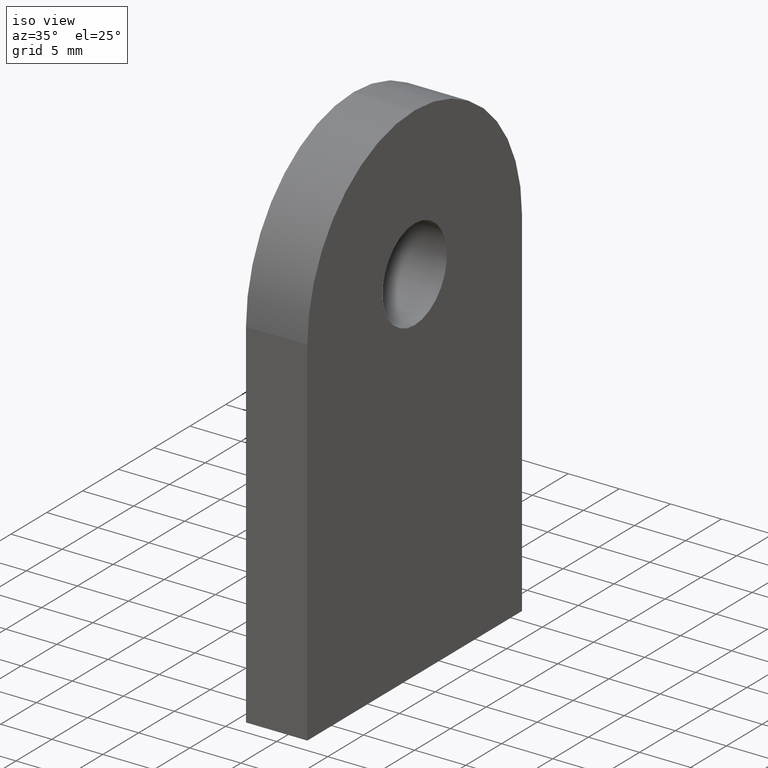
[diagram: clean part render]
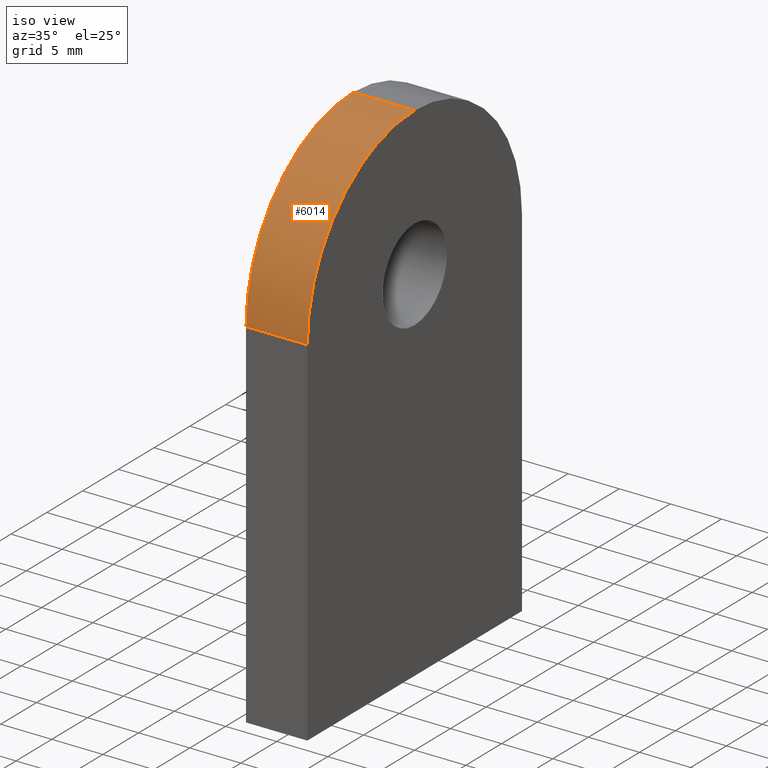
[diagram: same view with one face highlighted and labeled with its STEP entity id]
A machine part, iso view. The second image highlights one B-rep face of the part: STEP entity #6014.
In plain terms, the highlighted cylindrical surface (partial cylindrical patch) has radius 15 mm, axis along (-1, -0, -0).
Its self-contained STEP definition (entity closure, byte-faithful):
#72 = AXIS2_PLACEMENT_3D ( 'NONE', #8174, #9714, #1127 ) ;
#141 = CIRCLE ( 'NONE', #72, 15.00000000000000000 ) ;
#192 = DIRECTION ( 'NONE',  ( 0.0000000000000000000, 0.0000000000000000000, 1.000000000000000000 ) ) ;
#686 = CARTESIAN_POINT ( 'NONE',  ( -3.000000000000000000, 0.0000000000000000000, 34.99999999999999300 ) ) ;
#1127 = DIRECTION ( 'NONE',  ( 0.0000000000000000000, 0.0000000000000000000, 1.000000000000000000 ) ) ;
#1175 = DIRECTION ( 'NONE',  ( -1.000000000000000000, -0.0000000000000000000, -0.0000000000000000000 ) ) ;
#1973 = VECTOR ( 'NONE', #11272, 1000.000000000000000 ) ;
#2793 = CARTESIAN_POINT ( 'NONE',  ( -3.000000000000000000, -14.99999999999999800, 34.99999999999999300 ) ) ;
#3438 = VECTOR ( 'NONE', #4605, 1000.000000000000000 ) ;
#3561 = VERTEX_POINT ( 'NONE', #2793 ) ;
#3963 = VERTEX_POINT ( 'NONE', #5025 ) ;
#4091 = EDGE_CURVE ( 'NONE', #9499, #5758, #7897, .T. ) ;
#4244 = CARTESIAN_POINT ( 'NONE',  ( 3.000000000000000000, 0.0000000000000000000, 49.99999999999999300 ) ) ;
#4508 = CARTESIAN_POINT ( 'NONE',  ( -3.000000000000000000, 0.0000000000000000000, 49.99999999999999300 ) ) ;
#4565 = CARTESIAN_POINT ( 'NONE',  ( 3.000000000000000000, -14.99999999999999800, 34.99999999999999300 ) ) ;
#4605 = DIRECTION ( 'NONE',  ( -1.000000000000000000, -0.0000000000000000000, -0.0000000000000000000 ) ) ;
#5025 = CARTESIAN_POINT ( 'NONE',  ( 3.000000000000000000, -14.99999999999999800, 34.99999999999999300 ) ) ;
#5758 = VERTEX_POINT ( 'NONE', #4508 ) ;
#6014 = ADVANCED_FACE ( 'NONE', ( #7052 ), #8437, .T. ) ;
#6452 = CARTESIAN_POINT ( 'NONE',  ( 3.000000000000000000, 0.0000000000000000000, 34.99999999999999300 ) ) ;
#6757 = EDGE_CURVE ( 'NONE', #3963, #9499, #141, .T. ) ;
#7052 = FACE_OUTER_BOUND ( 'NONE', #7404, .T. ) ;
#7073 = ORIENTED_EDGE ( 'NONE', *, *, #10202, .F. ) ;
#7404 = EDGE_LOOP ( 'NONE', ( #9777, #7955, #9921, #7073 ) ) ;
#7897 = LINE ( 'NONE', #4244, #1973 ) ;
#7955 = ORIENTED_EDGE ( 'NONE', *, *, #4091, .T. ) ;
#8174 = CARTESIAN_POINT ( 'NONE',  ( 3.000000000000000000, 0.0000000000000000000, 34.99999999999999300 ) ) ;
#8437 = CYLINDRICAL_SURFACE ( 'NONE', #10440, 15.00000000000000000 ) ;
#8580 = DIRECTION ( 'NONE',  ( 0.0000000000000000000, 0.0000000000000000000, 1.000000000000000000 ) ) ;
#9064 = LINE ( 'NONE', #4565, #3438 ) ;
#9289 = DIRECTION ( 'NONE',  ( -1.000000000000000000, -0.0000000000000000000, 0.0000000000000000000 ) ) ;
#9499 = VERTEX_POINT ( 'NONE', #10049 ) ;
#9714 = DIRECTION ( 'NONE',  ( -1.000000000000000000, -0.0000000000000000000, 0.0000000000000000000 ) ) ;
#9740 = AXIS2_PLACEMENT_3D ( 'NONE', #686, #9289, #8580 ) ;
#9777 = ORIENTED_EDGE ( 'NONE', *, *, #6757, .T. ) ;
#9921 = ORIENTED_EDGE ( 'NONE', *, *, #10329, .F. ) ;
#10005 = CIRCLE ( 'NONE', #9740, 15.00000000000000000 ) ;
#10049 = CARTESIAN_POINT ( 'NONE',  ( 3.000000000000000000, 0.0000000000000000000, 49.99999999999999300 ) ) ;
#10202 = EDGE_CURVE ( 'NONE', #3963, #3561, #9064, .T. ) ;
#10329 = EDGE_CURVE ( 'NONE', #3561, #5758, #10005, .T. ) ;
#10440 = AXIS2_PLACEMENT_3D ( 'NONE', #6452, #1175, #192 ) ;
#11272 = DIRECTION ( 'NONE',  ( -1.000000000000000000, -0.0000000000000000000, -0.0000000000000000000 ) ) ;